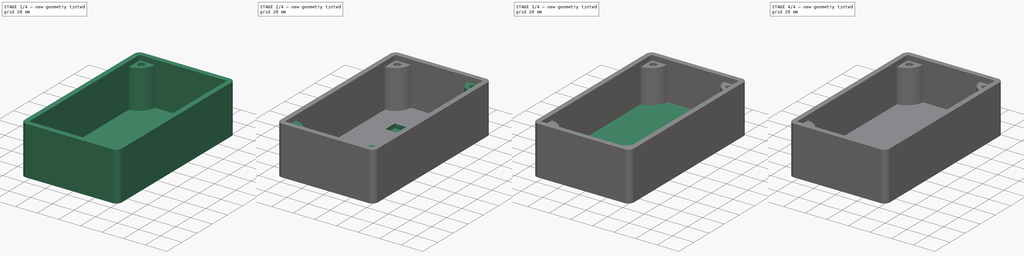
[diagram: build sequence overview — one tinted view per stage of 4, left to right]
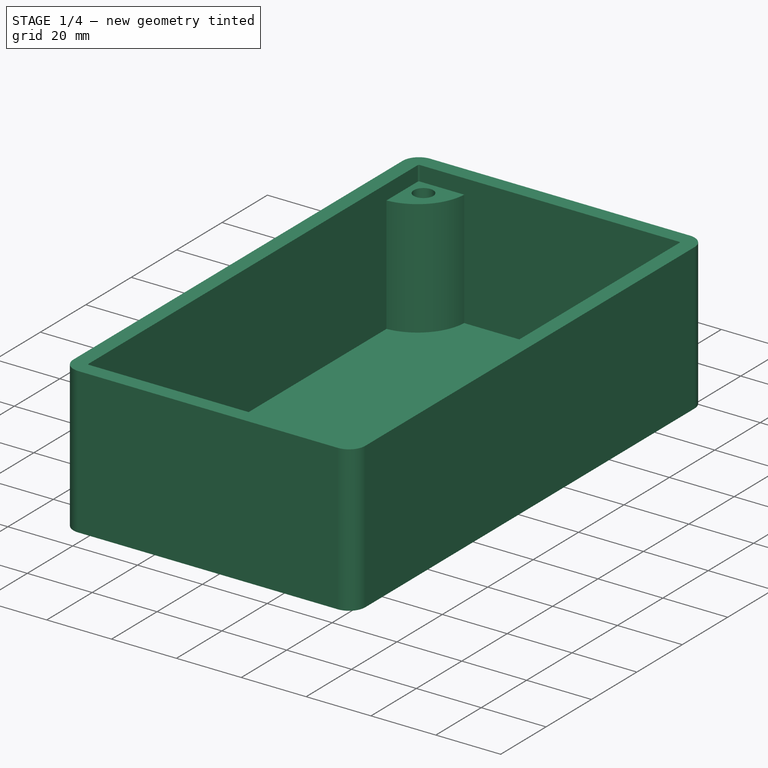
[diagram: stage 1 of 4 — iso view after this stage's code; geometry added in this stage tinted green]
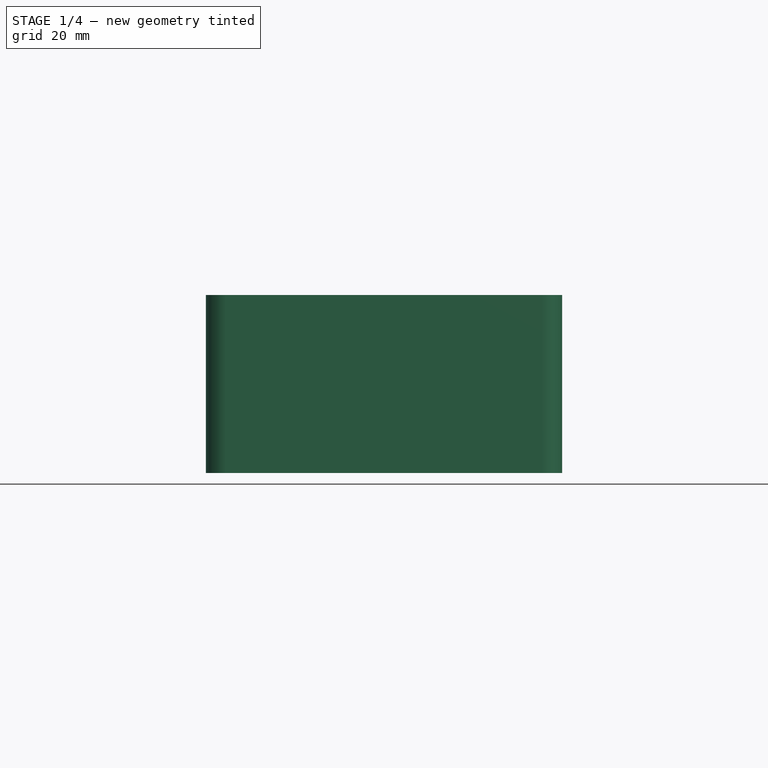
[diagram: stage 1 of 4 — front view after this stage's code; geometry added in this stage tinted green]
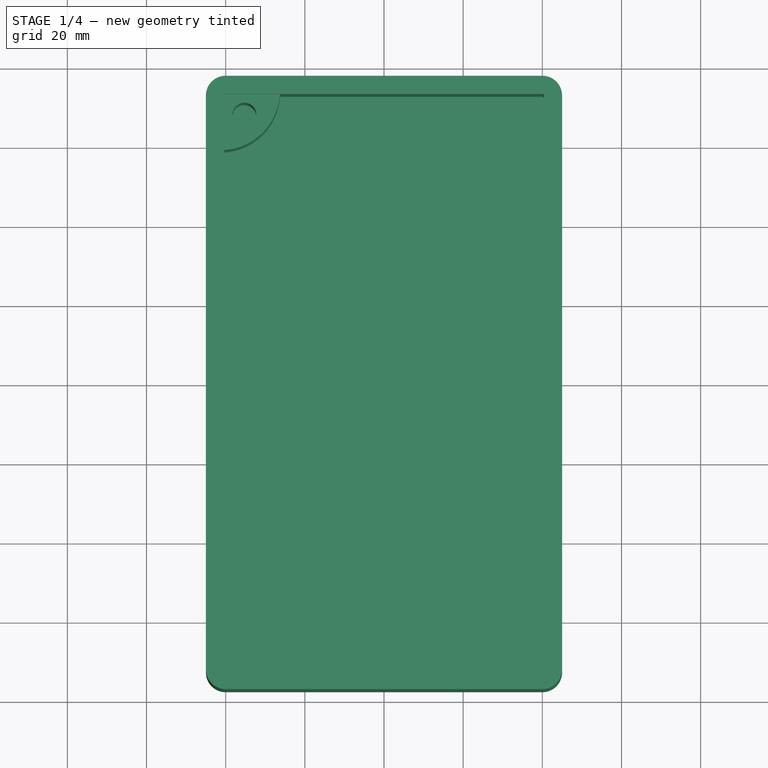
[diagram: stage 1 of 4 — top view after this stage's code; geometry added in this stage tinted green]
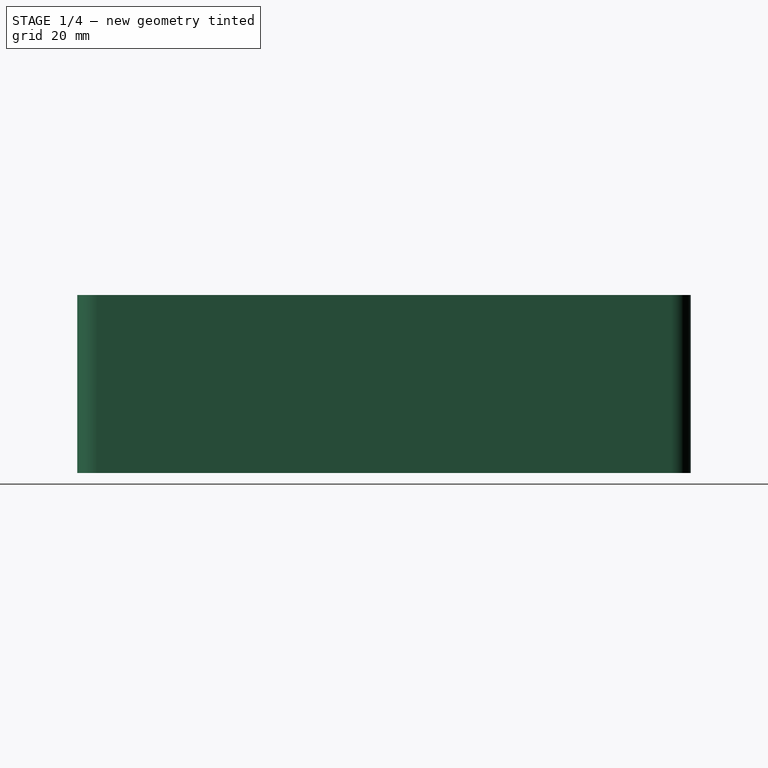
[diagram: stage 1 of 4 — right view after this stage's code; geometry added in this stage tinted green]
FCSTD DOCUMENT  (FreeCAD 0.21R33771 (Git))
Label: Project_Box_OLEDBOXFACE_91
License: All rights reserved
LicenseURL: http://en.wikipedia.org/wiki/All_rights_reserved
objects: Sketcher::SketchObject×8, PartDesign::Pad×4, PartDesign::Pocket×4, PartDesign::Mirrored×4, PartDesign::MultiTransform×2, PartDesign::Chamfer×2, PartDesign::Body×2, App::Part×2, Spreadsheet::Sheet×1
note: 36 computed .brp shape members not serialized (recipe doc carries the construction recipe); baked Part::Feature solids carry a one-line shape summary decoded from their .brp

FEATURE [Sketcher::SketchObject] Sketch
  FullyConstrained = true
  MapMode = 5
  Support = -> [XY_Plane002]
  expr: Constraints[16] = <<params>>.box_y
  expr: Constraints[17] = <<params>>.radius_out
  expr: Constraints[18] = <<params>>.box_x
  sketch-geometry (8):
    g0: LineSegment StartX=-40 StartY=77.5 StartZ=0 EndX=40 EndY=77.5 EndZ=0
    g1: LineSegment StartX=45 StartY=72.5 StartZ=0 EndX=45 EndY=-72.5 EndZ=0
    g2: LineSegment StartX=40 StartY=-77.5 StartZ=0 EndX=-40 EndY=-77.5 EndZ=0
    g3: LineSegment StartX=-45 StartY=-72.5 StartZ=0 EndX=-45 EndY=72.5 EndZ=0
    g4: ArcOfCircle CenterX=-40 CenterY=72.5 CenterZ=0 NormalX=0 NormalY=0 NormalZ=1 AngleXU=0 Radius=5 StartAngle=1.5708 EndAngle=3.14159
    g5: ArcOfCircle CenterX=40 CenterY=72.5 CenterZ=0 NormalX=0 NormalY=0 NormalZ=1 AngleXU=0 Radius=5 StartAngle=-9e-16 EndAngle=1.5708
    g6: ArcOfCircle CenterX=40 CenterY=-72.5 CenterZ=0 NormalX=0 NormalY=0 NormalZ=1 AngleXU=0 Radius=5 StartAngle=4.71239 EndAngle=6.28319
    g7: ArcOfCircle CenterX=-40 CenterY=-72.5 CenterZ=0 NormalX=0 NormalY=0 NormalZ=1 AngleXU=0 Radius=5 StartAngle=3.14159 EndAngle=4.71239
  constraints (19):
    c: Horizontal(g0)
    c: Horizontal(g2)
    c: Vertical(g1)
    c: Vertical(g3)
    c: Tangent(g0,g4) = 1.5708
    c: Tangent(g3,g4) = 1.5708
    c: Tangent(g0,g5) = 1.5708
    c: Tangent(g1,g5) = 1.5708
    c: Tangent(g1,g6) = 1.5708
    c: Tangent(g2,g6) = 1.5708
    c: Tangent(g2,g7) = 1.5708
    c: Tangent(g3,g7) = 1.5708
    c: Symmetric(g4,g6,g-1)
    c: Equal(g4,g5)
    c: Equal(g5,g6)
    c: Equal(g6,g7)
    c: DistanceY(g2,g0) = 155
    c: Radius(g5) = 5
    c: DistanceX(g3,g1) = 90
FEATURE [Spreadsheet::Sheet] Spreadsheet  label="params"
  cells = A2='box_x; B2(box_x)=90; A3='box_y; B3(box_y)=155; A4='box_z; B4(box_z)=45; A5='box_wall_t; B5(box_wall_t)=4.6; A6='box_i_x; B6(box_i_x)==B2 - B5 * 2; C6='Calculated; A7='box_i_y; B7(box_i_y)==B3 - B5 * 2; C7='Calculated; A8='radius_out; B8(radius_out)=5; A9='radius_in; B9(radius_in)==B8 - B5; C9='Calculated; A10='hole_d; B10(hole_d)=6; A11='lug_z; B11(lug_z)==B4 - B5 * 2; A12='lug_r; B12(lug_r)==B10 * 2.5; A13='corner_x; B13(corner_x)==B6 / 2; A14='corner_y; B14(corner_y)==B7 / 2; A15='clearance; B15(clearance)=0.2; A16='lug_clearance; B16(lug_clearance)=1; A18='oled_x; B18(oled_x)=38; A19='oled_y; B19(oled_y)=12; A20='oled_z; B20(oled_z)=3.8; A21='oled_d_x; B21(oled_d_x)=27; A22='oled_d_y; B22(oled_d_y)=12; A23='oled_offset; B23(oled_offset)=1
FEATURE [PartDesign::Pad] Pad  label="Main Box"
  Direction = (0,0,1)
  Length = 45
  Length2 = 10
  Profile = -> Sketch
  ReferenceAxis = -> Sketch [N_Axis]
  Type = 0
  expr: Length = <<params>>.box_z
FEATURE [Sketcher::SketchObject] Sketch001
  FullyConstrained = true
  MapMode = 5
  Placement = pos=(0,0,45) rot=(0,0,1;0rad)
  Support = -> [Pad]
  expr: Constraints[16] = <<params>>.radius_in
  expr: Constraints[17] = <<params>>.box_i_x
  expr: Constraints[18] = <<params>>.box_i_y
  sketch-geometry (8):
    g0: LineSegment StartX=-40 StartY=72.9 StartZ=0 EndX=40 EndY=72.9 EndZ=0
    g1: LineSegment StartX=40.4 StartY=72.5 StartZ=0 EndX=40.4 EndY=-72.5 EndZ=0
    g2: LineSegment StartX=40 StartY=-72.9 StartZ=0 EndX=-40 EndY=-72.9 EndZ=0
    g3: LineSegment StartX=-40.4 StartY=-72.5 StartZ=0 EndX=-40.4 EndY=72.5 EndZ=0
    g4: ArcOfCircle CenterX=-40 CenterY=72.5 CenterZ=0 NormalX=0 NormalY=0 NormalZ=1 AngleXU=0 Radius=0.4 StartAngle=1.5708 EndAngle=3.14159
    g5: ArcOfCircle CenterX=40 CenterY=72.5 CenterZ=0 NormalX=0 NormalY=0 NormalZ=1 AngleXU=0 Radius=0.4 StartAngle=-1.6e-14 EndAngle=1.5708
    g6: ArcOfCircle CenterX=40 CenterY=-72.5 CenterZ=0 NormalX=0 NormalY=0 NormalZ=1 AngleXU=0 Radius=0.4 StartAngle=4.71239 EndAngle=6.28319
    g7: ArcOfCircle CenterX=-40 CenterY=-72.5 CenterZ=0 NormalX=0 NormalY=0 NormalZ=1 AngleXU=0 Radius=0.4 StartAngle=3.14159 EndAngle=4.71239
  constraints (19):
    c: Horizontal(g0)
    c: Horizontal(g2)
    c: Vertical(g1)
    c: Vertical(g3)
    c: Tangent(g3,g4) = 1.5708
    c: Tangent(g0,g4) = 1.5708
    c: Tangent(g0,g5) = 1.5708
    c: Tangent(g1,g5) = 1.5708
    c: Tangent(g1,g6) = 1.5708
    c: Tangent(g2,g6) = 1.5708
    c: Tangent(g2,g7) = 1.5708
    c: Tangent(g3,g7) = 1.5708
    c: Symmetric(g4,g6,g-1)
    c: Equal(g4,g5)
    c: Equal(g5,g6)
    c: Equal(g6,g7)
    c: Radius(g5) = 0.4
    c: DistanceX(g3,g1) = 80.8
    c: DistanceY(g2,g0) = 145.8
FEATURE [PartDesign::Pocket] Pocket  label="Box Pocket"
  BaseFeature = -> Pad
  Direction = (0,0,-1)
  Length = 40.4
  Length2 = 5
  Profile = -> Sketch001
  ReferenceAxis = -> Sketch001 [N_Axis]
  Type = 0
  expr: Length = <<params>>.box_z - <<params>>.box_wall_t
FEATURE [PartDesign::Body] Body001  label="LidBody"
  Group = -> [Sketch003,Pad002,Sketch004,Pad003,Sketch005,Pocket001,MultiTransform001,Mirrored002,Mirrored003,Chamfer]
  Origin = -> Origin004
  Tip = -> Chamfer
FEATURE [App::Part] Part001  label="Lid"
  Group = -> [Body001]
  Origin = -> Origin003
FEATURE [PartDesign::Mirrored] Mirrored
  MirrorPlane = -> Sketch002 [V_Axis]
FEATURE [PartDesign::Mirrored] Mirrored001
  MirrorPlane = -> Sketch002 [H_Axis]
FEATURE [PartDesign::Pad] Pad001
  BaseFeature = -> Pocket
  Direction = (0,0,1)
  Length = 35.8
  Length2 = 10
  Profile = -> Sketch002
  ReferenceAxis = -> Sketch002 [N_Axis]
  Type = 0
  expr: Length = <<params>>.lug_z
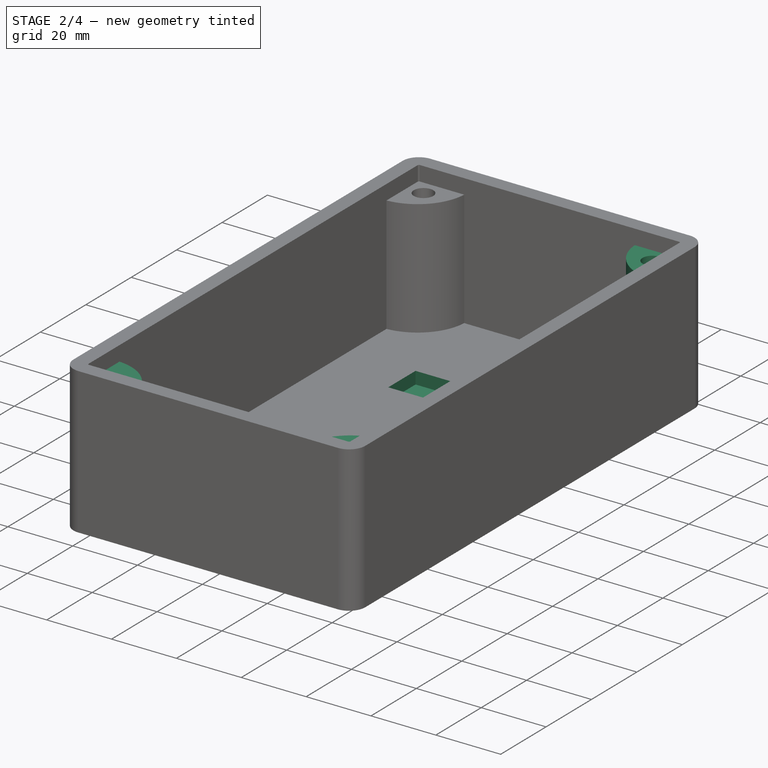
[diagram: stage 2 of 4 — iso view after this stage's code; geometry added in this stage tinted green]
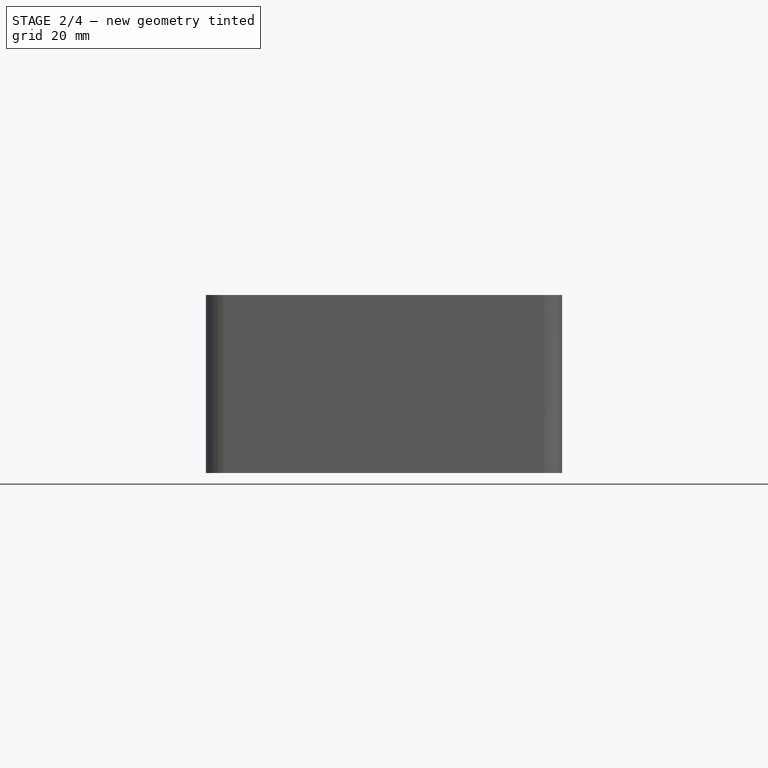
[diagram: stage 2 of 4 — front view after this stage's code; geometry added in this stage tinted green]
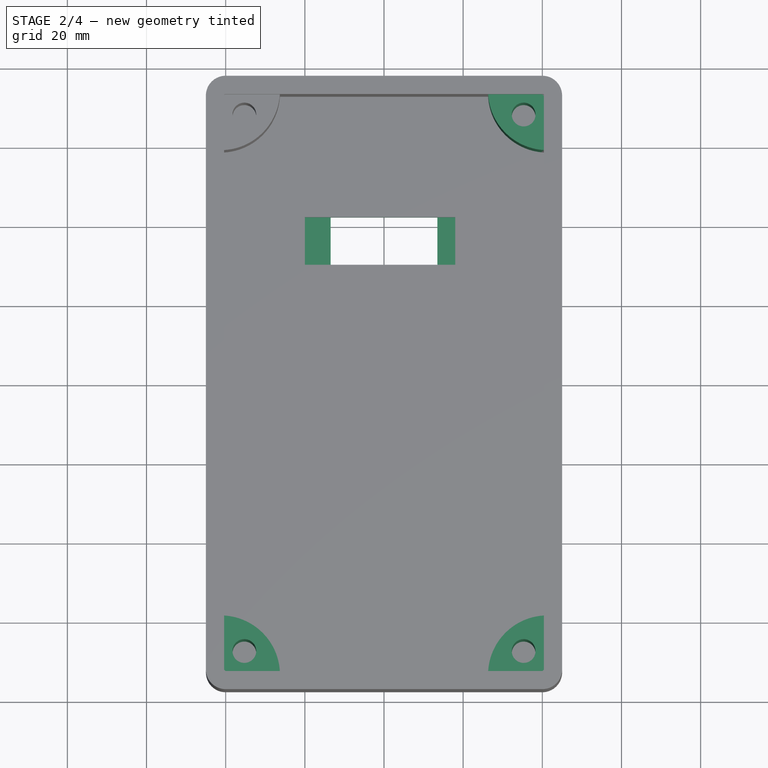
[diagram: stage 2 of 4 — top view after this stage's code; geometry added in this stage tinted green]
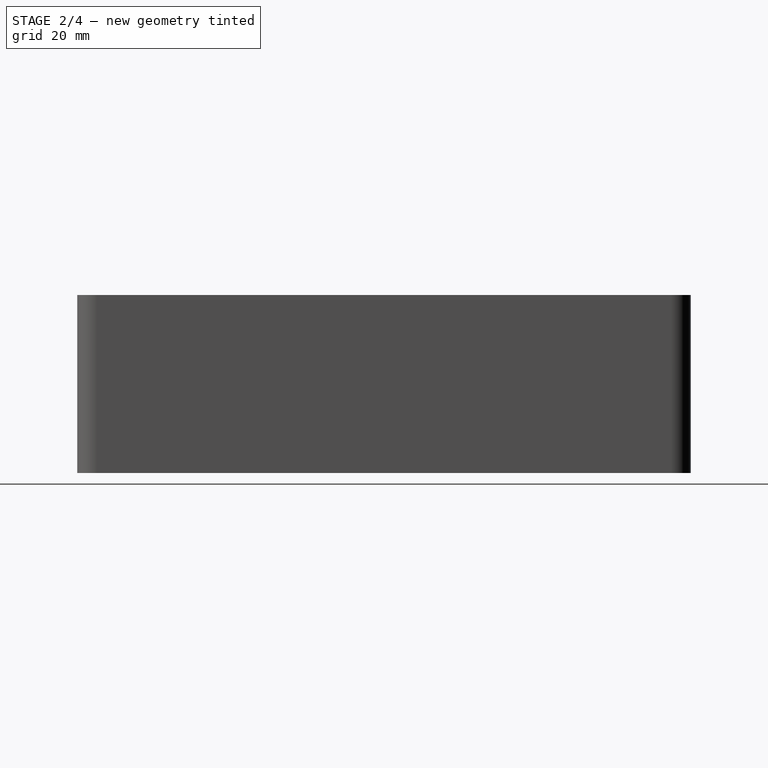
[diagram: stage 2 of 4 — right view after this stage's code; geometry added in this stage tinted green]
FEATURE [PartDesign::MultiTransform] MultiTransform
  BaseFeature = -> Pad001
  Originals = -> [Pad001]
  Transformations = -> [Mirrored,Mirrored001]
FEATURE [Sketcher::SketchObject] Sketch006
  FullyConstrained = true
  MapMode = 5
  Placement = pos=(0,0,4.6) rot=(0,0,1;0rad)
  Support = -> [MultiTransform]
  expr: Constraints[10] = <<params>>.box_i_y / 4 + <<params>>.oled_y / 2
  expr: Constraints[11] = <<params>>.oled_d_x / 2
  expr: Constraints[8] = <<params>>.oled_d_x
  expr: Constraints[9] = <<params>>.oled_d_y
  sketch-geometry (4):
    g0: LineSegment StartX=-13.5 StartY=42.45 StartZ=0 EndX=13.5 EndY=42.45 EndZ=0
    g1: LineSegment StartX=13.5 StartY=42.45 StartZ=0 EndX=13.5 EndY=30.45 EndZ=0
    g2: LineSegment StartX=13.5 StartY=30.45 StartZ=0 EndX=-13.5 EndY=30.45 EndZ=0
    g3: LineSegment StartX=-13.5 StartY=30.45 StartZ=0 EndX=-13.5 EndY=42.45 EndZ=0
  constraints (12):
    c: Coincident(g0,g1)
    c: Coincident(g1,g2)
    c: Coincident(g2,g3)
    c: Coincident(g3,g0)
    c: Horizontal(g0)
    c: Horizontal(g2)
    c: Vertical(g1)
    c: Vertical(g3)
    c: DistanceX(g0,g0) = 27
    c: DistanceY(g2,g0) = 12
    c: DistanceY(g-1,g0) = 42.45
    c: DistanceX(g2,g-1) = 13.5
FEATURE [PartDesign::Pocket] Pocket002  label="OLED Display Pocket"
  BaseFeature = -> MultiTransform
  Direction = (0,0,-1)
  Length = 4.6
  Length2 = 5
  Profile = -> Sketch006
  ReferenceAxis = -> Sketch006 [N_Axis]
  Type = 0
  expr: Length = <<params>>.box_wall_t
FEATURE [Sketcher::SketchObject] Sketch007
  FullyConstrained = true
  MapMode = 5
  Placement = pos=(0,0,4.6) rot=(0,0,1;0rad)
  Support = -> [Pocket002]
  expr: Constraints[10] = <<params>>.box_i_y / 4 + <<params>>.oled_y / 2
  expr: Constraints[11] = <<params>>.oled_x / 2 + <<params>>.oled_offset
  expr: Constraints[8] = <<params>>.oled_y
  expr: Constraints[9] = <<params>>.oled_x
  sketch-geometry (4):
    g0: LineSegment StartX=-20 StartY=42.45 StartZ=0 EndX=18 EndY=42.45 EndZ=0
    g1: LineSegment StartX=18 StartY=42.45 StartZ=0 EndX=18 EndY=30.45 EndZ=0
    g2: LineSegment StartX=18 StartY=30.45 StartZ=0 EndX=-20 EndY=30.45 EndZ=0
    g3: LineSegment StartX=-20 StartY=30.45 StartZ=0 EndX=-20 EndY=42.45 EndZ=0
  constraints (12):
    c: Coincident(g0,g1)
    c: Coincident(g1,g2)
    c: Coincident(g2,g3)
    c: Coincident(g3,g0)
    c: Horizontal(g0)
    c: Horizontal(g2)
    c: Vertical(g1)
    c: Vertical(g3)
    c: DistanceY(g3,g3) = 12
    c: DistanceX(g0,g0) = 38
    c: DistanceY(g-1,g0) = 42.45
    c: DistanceX(g2,g-1) = 20
FEATURE [PartDesign::Pocket] Pocket003
  BaseFeature = -> Pocket002
  Direction = (0,0,-1)
  Length = 3.8
  Length2 = 5
  Profile = -> Sketch007
  ReferenceAxis = -> Sketch007 [N_Axis]
  Type = 0
  expr: Length = <<params>>.oled_z
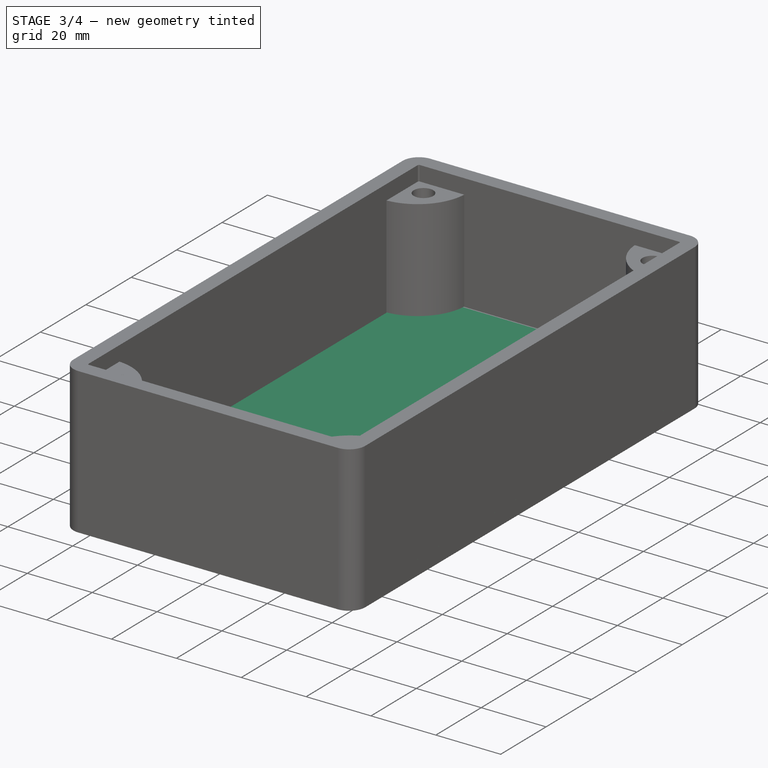
[diagram: stage 3 of 4 — iso view after this stage's code; geometry added in this stage tinted green]
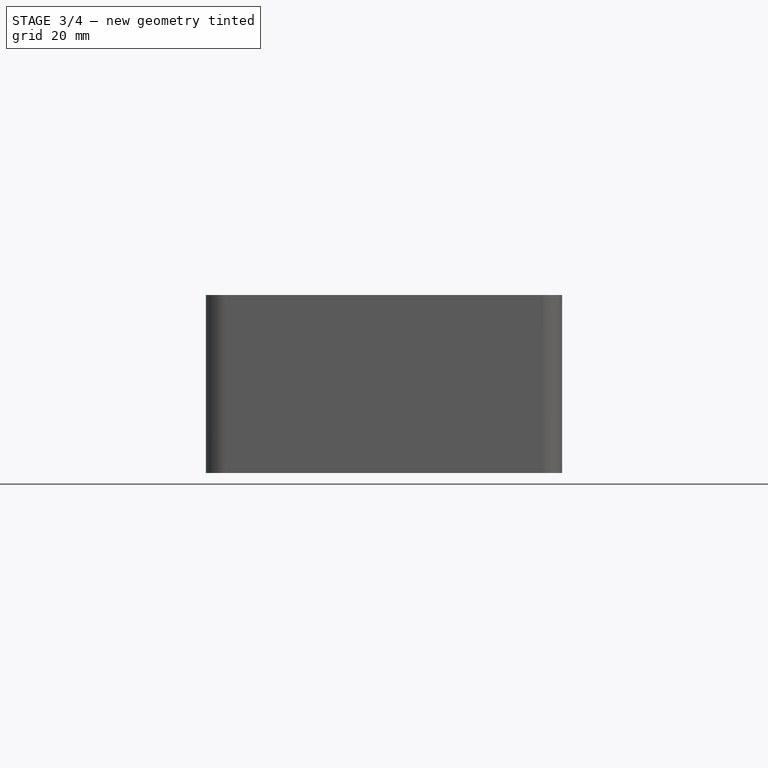
[diagram: stage 3 of 4 — front view after this stage's code; geometry added in this stage tinted green]
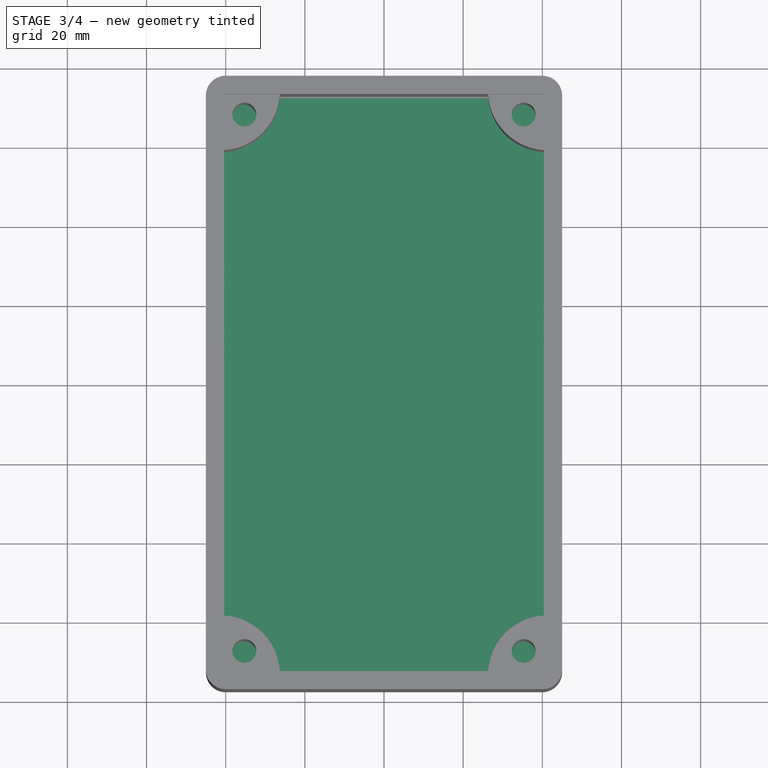
[diagram: stage 3 of 4 — top view after this stage's code; geometry added in this stage tinted green]
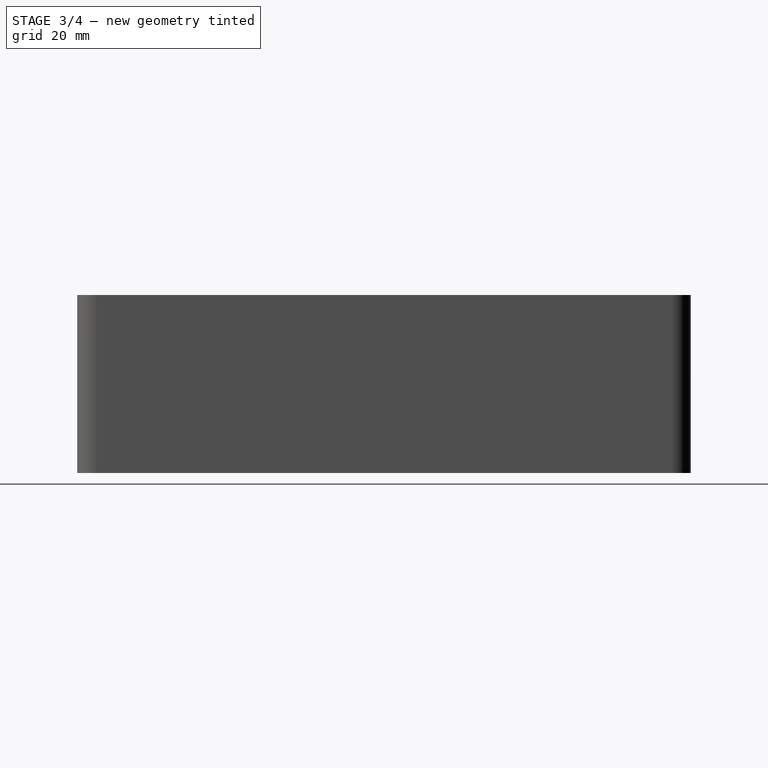
[diagram: stage 3 of 4 — right view after this stage's code; geometry added in this stage tinted green]
FEATURE [Sketcher::SketchObject] Sketch002
  FullyConstrained = true
  MapMode = 5
  Placement = pos=(0,0,4.6) rot=(0,0,1;0rad)
  Support = -> [Pocket]
  expr: Constraints[10] = <<params>>.box_y / 2 - <<params>>.box_wall_t / 2
  expr: Constraints[11] = <<params>>.box_x / 2 - <<params>>.box_wall_t / 2
  expr: Constraints[4] = <<params>>.hole_d * 2.5
  expr: Constraints[5] = <<params>>.hole_d
  expr: Constraints[6] = <<params>>.hole_d
  expr: Constraints[7] = <<params>>.hole_d
  expr: Constraints[8] = <<params>>.box_i_x / 2 - <<params>>.radius_in + <<params>>.radius_in * cos(45) + <<params>>.lug_clearance
  expr: Constraints[9] = <<params>>.box_i_y / 2 - <<params>>.radius_in + <<params>>.radius_in * sin(45) + <<params>>.lug_clearance
  sketch-geometry (4):
    g0: LineSegment StartX=-41.2828 StartY=73.7828 StartZ=0 EndX=-42.7 EndY=58.8499 EndZ=0
    g1: LineSegment StartX=-41.2828 StartY=73.7828 StartZ=0 EndX=-26.3499 EndY=75.2 EndZ=0
    g2: ArcOfCircle CenterX=-41.2828 CenterY=73.7828 CenterZ=0 NormalX=0 NormalY=0 NormalZ=1 AngleXU=0 Radius=15 StartAngle=4.61777 EndAngle=6.3778
    g3: Circle CenterX=-35.2828 CenterY=67.7828 CenterZ=0 NormalX=0 NormalY=0 NormalZ=1 AngleXU=0 Radius=3
  constraints (12):
    c: Coincident(g1,g0)
    c: Coincident(g2,g0)
    c: Coincident(g2,g1)
    c: Coincident(g2,g0)
    c: Radius(g2) = 15
    c: Diameter(g3) = 6
    c: DistanceX(g0,g3) = 6
    c: DistanceY(g3,g0) = 6
    c: DistanceX(g0,g-1) = 41.2828
    c: DistanceY(g-1,g0) = 73.7828
    c: DistanceY(g-1,g1) = 75.2
    c: DistanceX(g0,g-1) = 42.7
FEATURE [Sketcher::SketchObject] Sketch003
  FullyConstrained = true
  MapMode = 5
  Support = -> [XY_Plane004]
  expr: Constraints[15] = <<params>>.box_y
  expr: Constraints[16] = <<params>>.box_x
  expr: Constraints[17] = <<params>>.radius_out
  sketch-geometry (8):
    g0: LineSegment StartX=-40 StartY=77.5 StartZ=0 EndX=40 EndY=77.5 EndZ=0
    g1: LineSegment StartX=45 StartY=72.5 StartZ=0 EndX=45 EndY=-72.5 EndZ=0
    g2: LineSegment StartX=40 StartY=-77.5 StartZ=0 EndX=-40 EndY=-77.5 EndZ=0
    g3: LineSegment StartX=-45 StartY=-72.5 StartZ=0 EndX=-45 EndY=72.5 EndZ=0
    g4: ArcOfCircle CenterX=40 CenterY=72.5 CenterZ=0 NormalX=0 NormalY=0 NormalZ=1 AngleXU=0 Radius=5 StartAngle=9e-16 EndAngle=1.5708
    g5: ArcOfCircle CenterX=40 CenterY=-72.5 CenterZ=0 NormalX=0 NormalY=0 NormalZ=1 AngleXU=0 Radius=5 StartAngle=4.71239 EndAngle=6.28319
    g6: ArcOfCircle CenterX=-40 CenterY=-72.5 CenterZ=0 NormalX=0 NormalY=0 NormalZ=1 AngleXU=0 Radius=5 StartAngle=3.14159 EndAngle=4.71239
    g7: ArcOfCircle CenterX=-40 CenterY=72.5 CenterZ=0 NormalX=0 NormalY=0 NormalZ=1 AngleXU=0 Radius=5 StartAngle=1.5708 EndAngle=3.14159
  constraints (19):
    c: Horizontal(g0)
    c: Horizontal(g2)
    c: Vertical(g1)
    c: Vertical(g3)
    c: Tangent(g0,g4) = 1.5708
    c: Tangent(g1,g4) = 1.5708
    c: Tangent(g1,g5) = 1.5708
    c: Tangent(g2,g5) = 1.5708
    c: Tangent(g2,g6) = 1.5708
    c: Tangent(g3,g6) = 1.5708
    c: Tangent(g0,g7) = 1.5708
    c: Tangent(g3,g7) = 1.5708
    c: Equal(g7,g4)
    c: Equal(g4,g5)
    c: Equal(g5,g6)
    c: DistanceY(g2,g0) = 155
    c: DistanceX(g3,g1) = 90
    c: Radius(g4) = 5
    c: Symmetric(g5,g7,g-1)
FEATURE [PartDesign::Pad] Pad002
  Direction = (0,0,1)
  Length = 4.6
  Length2 = 10
  Profile = -> Sketch003
  ReferenceAxis = -> Sketch003 [N_Axis]
  Type = 0
  expr: Length = <<params>>.box_wall_t
FEATURE [Sketcher::SketchObject] Sketch004
  FullyConstrained = true
  MapMode = 5
  Placement = pos=(0,0,4.6) rot=(0,0,1;0rad)
  Support = -> [Pad002]
  expr: Constraints[15] = <<params>>.radius_in
  expr: Constraints[16] = <<params>>.box_i_x - <<params>>.clearance
  expr: Constraints[17] = <<params>>.box_i_y - <<params>>.clearance
  sketch-geometry (8):
    g0: LineSegment StartX=-39.9 StartY=72.8 StartZ=0 EndX=39.9 EndY=72.8 EndZ=0
    g1: LineSegment StartX=40.3 StartY=72.4 StartZ=0 EndX=40.3 EndY=-72.4 EndZ=0
    g2: LineSegment StartX=39.9 StartY=-72.8 StartZ=0 EndX=-39.9 EndY=-72.8 EndZ=0
    g3: LineSegment StartX=-40.3 StartY=-72.4 StartZ=0 EndX=-40.3 EndY=72.4 EndZ=0
    g4: ArcOfCircle CenterX=-39.9 CenterY=72.4 CenterZ=0 NormalX=0 NormalY=0 NormalZ=1 AngleXU=0 Radius=0.4 StartAngle=1.5708 EndAngle=3.14159
    g5: ArcOfCircle CenterX=39.9 CenterY=72.4 CenterZ=0 NormalX=0 NormalY=0 NormalZ=1 AngleXU=0 Radius=0.4 StartAngle=1.6e-14 EndAngle=1.5708
    g6: ArcOfCircle CenterX=39.9 CenterY=-72.4 CenterZ=0 NormalX=0 NormalY=0 NormalZ=1 AngleXU=0 Radius=0.4 StartAngle=4.71239 EndAngle=6.28319
    g7: ArcOfCircle CenterX=-39.9 CenterY=-72.4 CenterZ=0 NormalX=0 NormalY=0 NormalZ=1 AngleXU=0 Radius=0.4 StartAngle=3.14159 EndAngle=4.71239
  constraints (19):
    c: Horizontal(g0)
    c: Horizontal(g2)
    c: Vertical(g1)
    c: Vertical(g3)
    c: Tangent(g0,g4) = 1.5708
    c: Tangent(g3,g4) = 1.5708
    c: Tangent(g0,g5) = 1.5708
    c: Tangent(g1,g5) = 1.5708
    c: Tangent(g1,g6) = 1.5708
    c: Tangent(g2,g6) = 1.5708
    c: Tangent(g2,g7) = 1.5708
    c: Tangent(g3,g7) = 1.5708
    c: Equal(g4,g5)
    c: Equal(g5,g6)
    c: Equal(g6,g7)
    c: Radius(g5) = 0.4
    c: DistanceX(g3,g1) = 80.6
    c: DistanceY(g2,g0) = 145.6
    c: Symmetric(g5,g7,g-1)
FEATURE [PartDesign::Pad] Pad003
  BaseFeature = -> Pad002
  Direction = (0,0,1)
  Length = 4.6
  Length2 = 10
  Profile = -> Sketch004
  ReferenceAxis = -> Sketch004 [N_Axis]
  Type = 0
  expr: Length = <<params>>.box_wall_t
FEATURE [PartDesign::Chamfer] Chamfer001
  Angle = 45
  Base = -> Pocket003 [Edge19,Edge18,Edge17,Edge16]
  BaseFeature = -> Pocket003
  ChamferType = 0
  FlipDirection = false
  Size = 0.6
  Size2 = 1
  SupportTransform = false
  UseAllEdges = false
FEATURE [PartDesign::Body] Body  label="BoxBody"
  Group = -> [Sketch,Pad,Sketch001,Pocket,Sketch002,Pad001,MultiTransform,Mirrored,Mirrored001,Sketch006,Pocket002,Sketch007,Pocket003,Chamfer001]
  Origin = -> Origin002
  Tip = -> Chamfer001
FEATURE [App::Part] Part  label="Box"
  Group = -> [Body]
  Origin = -> Origin
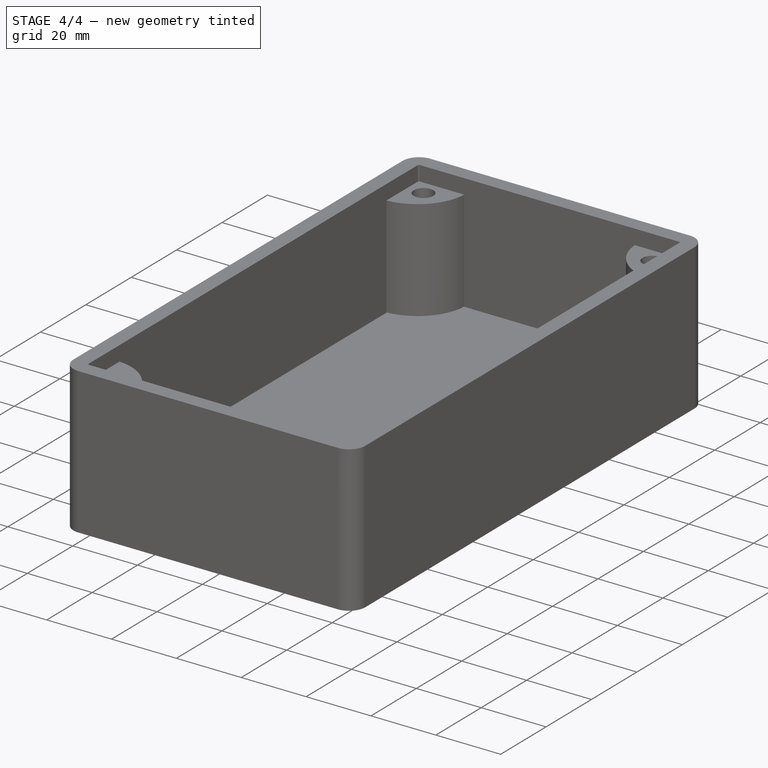
[diagram: stage 4 of 4 — iso view after this stage's code; geometry added in this stage tinted green]
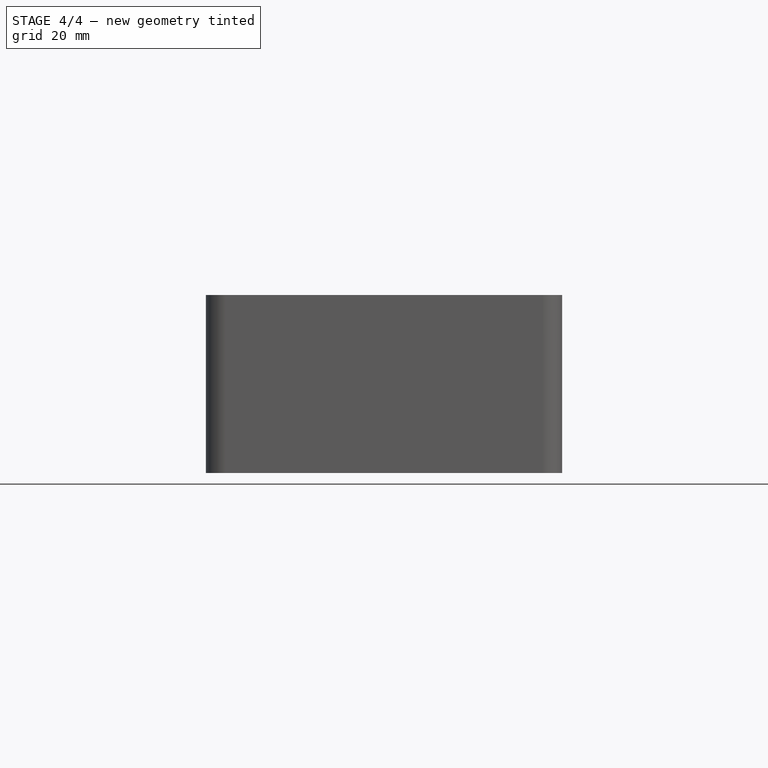
[diagram: stage 4 of 4 — front view after this stage's code; geometry added in this stage tinted green]
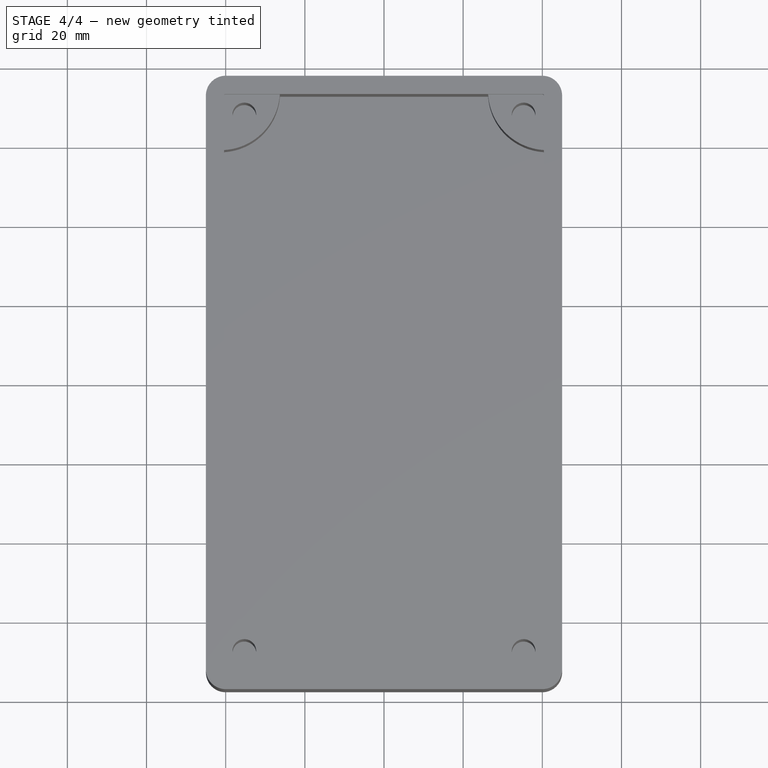
[diagram: stage 4 of 4 — top view after this stage's code; geometry added in this stage tinted green]
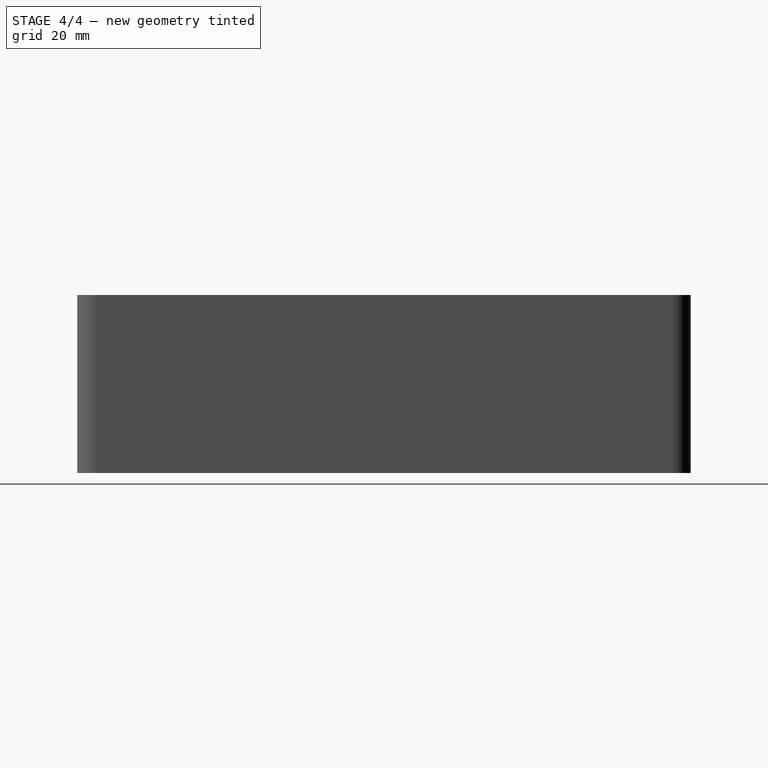
[diagram: stage 4 of 4 — right view after this stage's code; geometry added in this stage tinted green]
FEATURE [Sketcher::SketchObject] Sketch005
  FullyConstrained = true
  MapMode = 5
  Placement = pos=(0,0,9.2) rot=(0,0,1;0rad)
  Support = -> [Pad003]
  expr: Constraints[0] = <<params>>.hole_d
  expr: Constraints[1] = <<params>>.box_i_y / 2 - <<params>>.radius_in + <<params>>.radius_in * cos(45) + <<params>>.lug_clearance - <<params>>.hole_d
  expr: Constraints[2] = <<params>>.box_i_x / 2 - <<params>>.radius_in + <<params>>.radius_in * cos(45) + <<params>>.lug_clearance - <<params>>.hole_d
  sketch-geometry (1):
    g0: Circle CenterX=-35.2828 CenterY=67.7828 CenterZ=0 NormalX=0 NormalY=0 NormalZ=1 AngleXU=0 Radius=3
  constraints (3):
    c: Diameter(g0) = 6
    c: DistanceY(g-1,g0) = 67.7828
    c: DistanceX(g0,g-1) = 35.2828
FEATURE [PartDesign::Pocket] Pocket001
  BaseFeature = -> Pad003
  Direction = (0,0,-1)
  Length = 9.2
  Length2 = 5
  Profile = -> Sketch005
  ReferenceAxis = -> Sketch005 [N_Axis]
  Type = 0
  expr: Length = <<params>>.box_wall_t * 2
FEATURE [PartDesign::Mirrored] Mirrored002
  MirrorPlane = -> Sketch005 [V_Axis]
FEATURE [PartDesign::Mirrored] Mirrored003
  MirrorPlane = -> Sketch005 [H_Axis]
FEATURE [PartDesign::MultiTransform] MultiTransform001
  BaseFeature = -> Pocket001
  Originals = -> [Pocket001]
  Transformations = -> [Mirrored002,Mirrored003]
FEATURE [PartDesign::Chamfer] Chamfer
  Angle = 45
  Base = -> MultiTransform001 [Edge18,Edge16,Edge17,Edge19]
  BaseFeature = -> MultiTransform001
  ChamferType = 0
  FlipDirection = false
  Size = 2
  Size2 = 1
  SupportTransform = false
  UseAllEdges = false
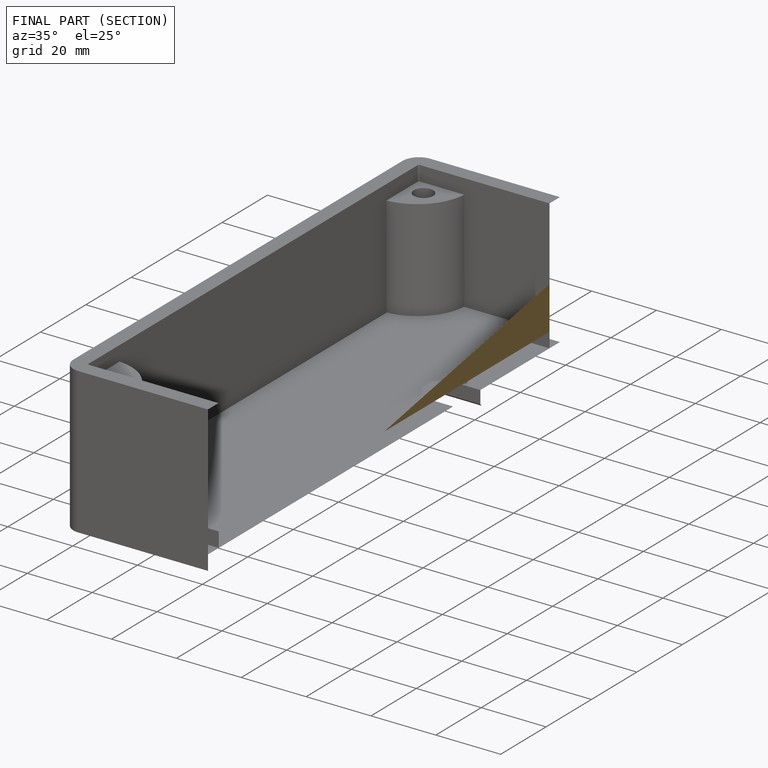
[diagram: finished part — half-section view (interior)]
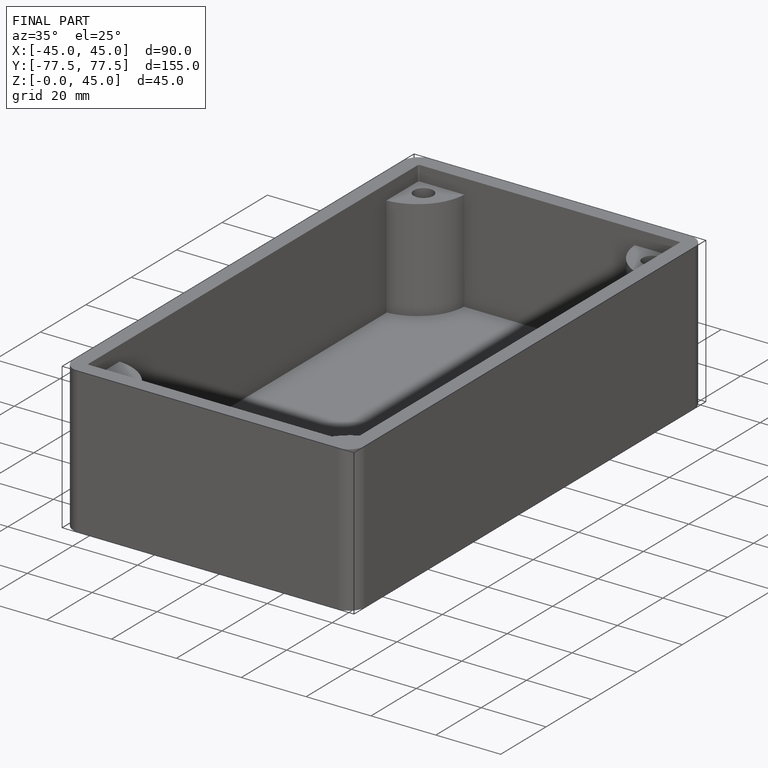
[diagram: finished part — iso view with bounding-box wireframe]
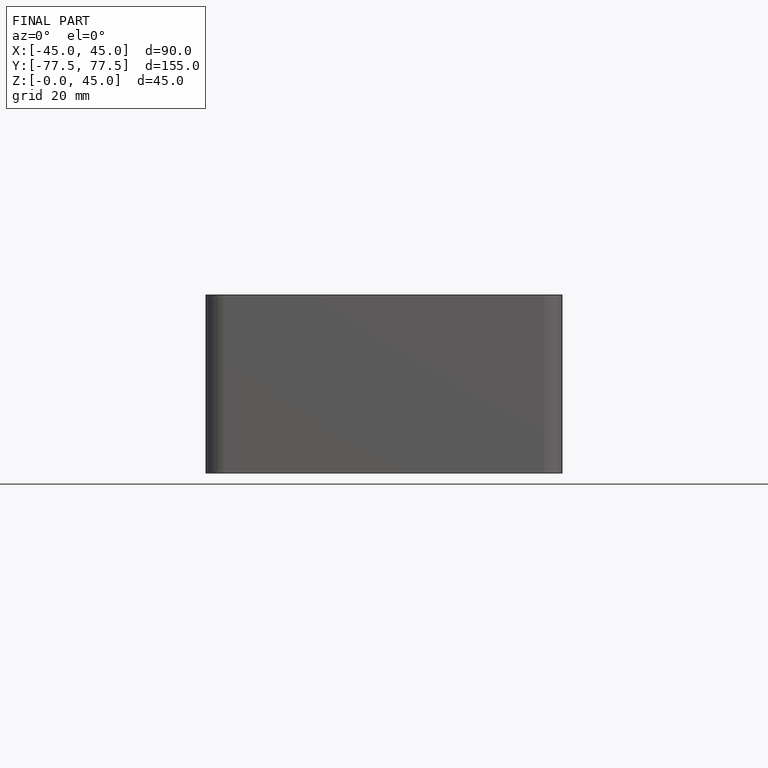
[diagram: finished part — front view with bounding-box wireframe]
